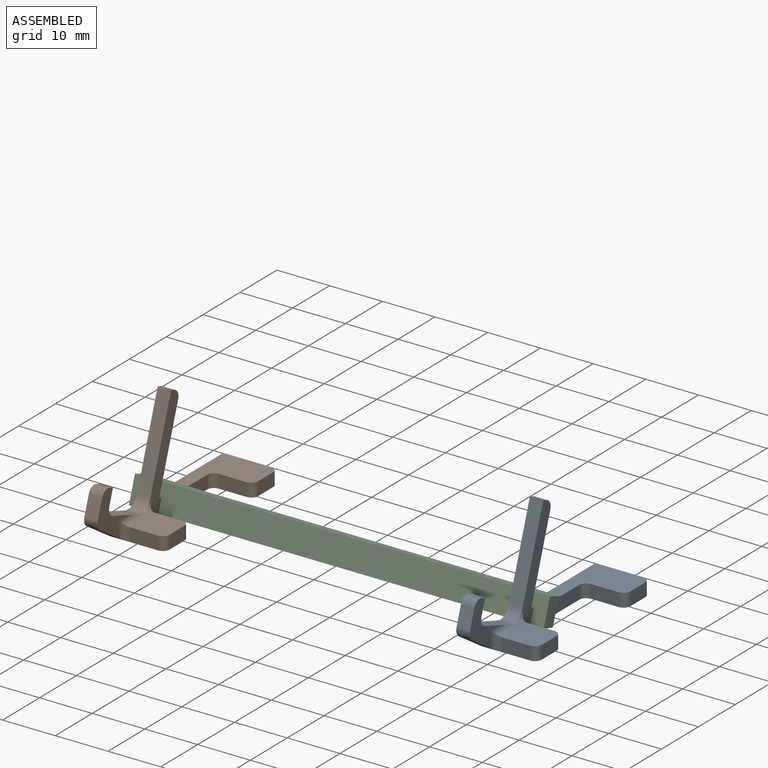
[diagram: assembled view]
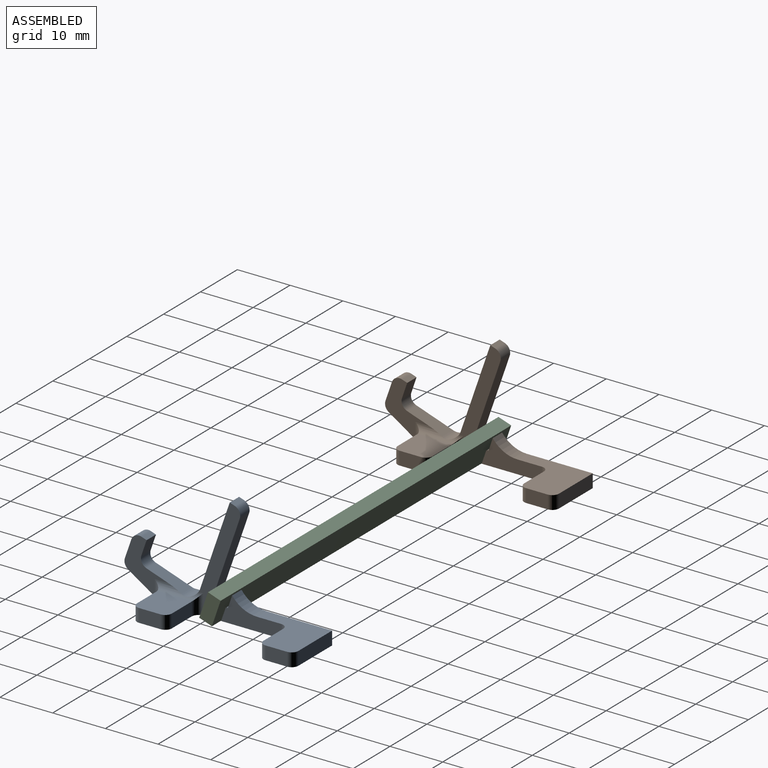
[diagram: assembled view, second angle]
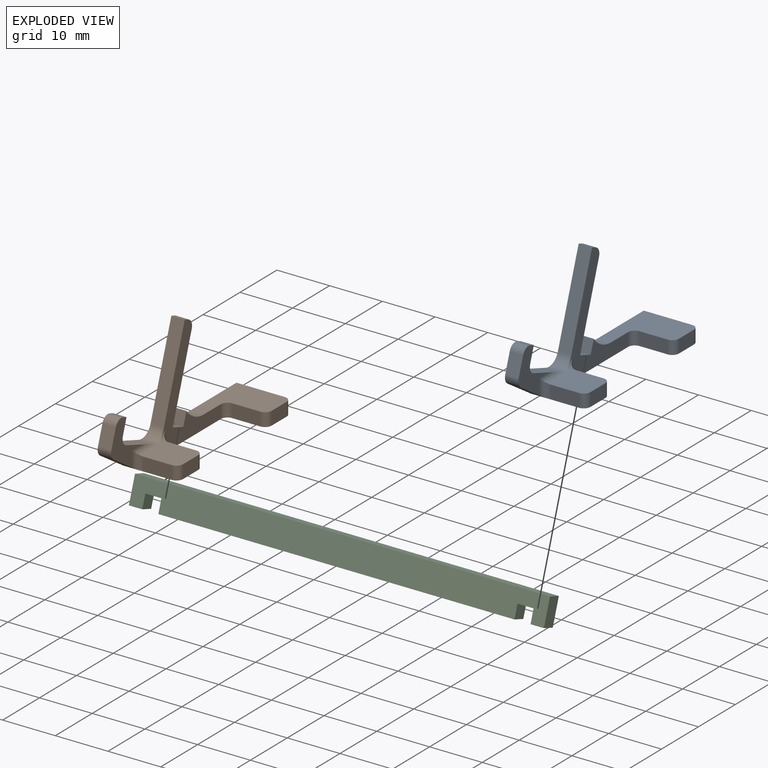
[diagram: exploded view]
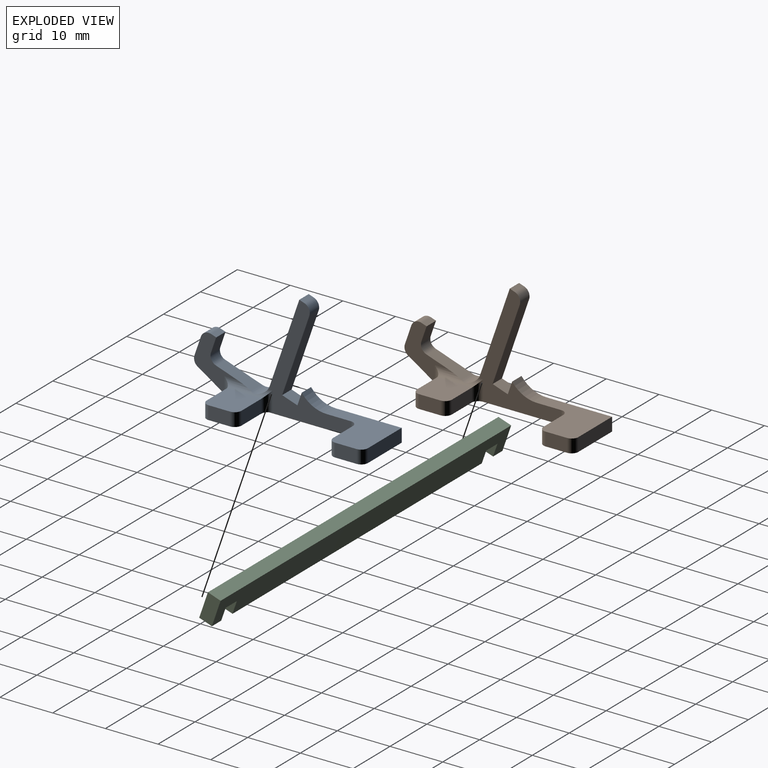
[diagram: exploded view, second angle]
ASSEMBLY  parts=3 mates=2
PART A: 46 faces, bbox 10.4x37.6x20.8 mm
  f0: plane 20.76x15.71mm, normal (1,0,0), area 89.8mm2, adj f1,f9,f10,f11,f12,f13,f14,f15
  f1: plane 30.6x10.41mm, normal (0,0,-1), area 148.8mm2, adj f0,f7,f8,f21,f22,f23,f25,f26
  f2: plane 9.66x8.35mm, normal (1,0,0), area 29.7mm2, adj f3,f4,f5,f6,f7,f18,f19,f20
  f3: plane 2.54x0.96mm, normal (0,0.33,0.95), area 2.6mm2, adj f2,f4,f20,f21
  f4: cylinder r=1.52mm len=2.54mm, axis (-1,0,0), area 6.1mm2, adj f2,f3,f5,f21
  f5: plane 3.56x2.54mm, normal (0,-0.95,0.33), area 9.6mm2, adj f2,f4,f6,f21
  f6: cylinder r=1.52mm len=2.54mm, axis (-1,0,0), area 5.1mm2, adj f2,f5,f7,f21
  f7: plane 6.33x4.13mm, normal (0,-0.55,-0.84), area 19.6mm2, adj f1,f2,f6,f21,f43
  f8: plane 9.14x2.54mm, normal (0,1,0), area 23.2mm2, adj f1,f9,f21,f38
  f9: plane 12.46x10.41mm, normal (0,0,1), area 83.3mm2, adj f0,f8,f10,f21,f26,f27,f38,f39
  f10: cylinder r=5.84mm len=4.72mm, axis (-1,0,0), area 14mm2, adj f0,f9,f11,f21
  f11: plane 2.54x2.4mm, normal (0,-0.95,0.33), area 6.5mm2, adj f0,f10,f12,f21
  f12: plane 2.88x2.54mm, normal (0,0.33,0.95), area 7.7mm2, adj f0,f11,f13,f21
  f13: plane 14.96x5.15mm, normal (0,0.95,-0.33), area 40.2mm2, adj f0,f12,f14,f21
  f14: cylinder r=1.52mm len=2.54mm, axis (-1,0,0), area 6.1mm2, adj f0,f13,f15,f21
  f15: plane 2.54x0.96mm, normal (0,0.33,0.95), area 2.6mm2, adj f0,f14,f16,f21
  f16: plane 16.33x5.62mm, normal (0,-0.95,0.33), area 43.9mm2, adj f0,f15,f17,f21
  f17: cylinder r=2.54mm len=3.23mm, axis (-1,0,0), area 11.3mm2, adj f0,f16,f18,f21,f44
  f18: plane 6.96x2.97mm, normal (0,0.33,0.95), area 19.1mm2, adj f2,f17,f19,f21,f44
  f19: cylinder r=1.52mm len=2.54mm, axis (-1,0,0), area 6.1mm2, adj f2,f18,f20,f21
  f20: plane 2.88x2.54mm, normal (0,0.95,-0.33), area 7.7mm2, adj f2,f3,f19,f21
  f21: plane 37.62x20.76mm, normal (-1,0,0), area 170.1mm2, adj f1,f3,f4,f5,f6,f7,f8,f9
  f22: plane 5.33x2.54mm, normal (0,-1,0), area 13.5mm2, adj f1,f24,f41,f43
  f23: plane 5.33x2.54mm, normal (0,1,0), area 13.5mm2, adj f1,f24,f40,f45
  f24: plane 6.6x6.6mm, normal (0,0,1), area 42.9mm2, adj f22,f23,f25,f40,f41,f44
  f25: plane 4.06x2.54mm, normal (1,0,0), area 10.3mm2, adj f1,f24,f40,f41
  f26: plane 5.33x2.54mm, normal (0,-1,0), area 13.5mm2, adj f1,f9,f39,f42
  f27: plane 4.06x2.54mm, normal (1,0,0), area 10.3mm2, adj f1,f9,f38,f39
  f28: plane 2.54x1.78mm, normal (-1,0,0), area 4.5mm2, adj f1,f29,f31,f32
  f29: plane 6.35x1.78mm, normal (0,1,0), area 11.3mm2, adj f1,f28,f30,f32
  f30: plane 2.54x1.78mm, normal (1,0,0), area 4.5mm2, adj f1,f29,f31,f32
  f31: plane 6.35x1.78mm, normal (0,-1,0), area 11.3mm2, adj f1,f28,f30,f32
  f32: plane 6.35x2.54mm, normal (0,0,-1), area 16.1mm2, adj f28,f29,f30,f31
  f33: plane 2.54x1.78mm, normal (-1,0,0), area 4.5mm2, adj f1,f34,f36,f37
  f34: plane 6.35x1.78mm, normal (0,1,0), area 11.3mm2, adj f1,f33,f35,f37
  f35: plane 2.54x1.78mm, normal (1,0,0), area 4.5mm2, adj f1,f34,f36,f37
  f36: plane 6.35x1.78mm, normal (0,-1,0), area 11.3mm2, adj f1,f33,f35,f37
  f37: plane 6.35x2.54mm, normal (0,0,-1), area 16.1mm2, adj f33,f34,f35,f36
  f38: cylinder r=1.27mm len=2.54mm, axis (0,0,-1), area 5.1mm2, adj f1,f8,f9,f27
  f39: cylinder r=1.27mm len=2.54mm, axis (0,0,1), area 5.1mm2, adj f1,f9,f26,f27
  f40: cylinder r=1.27mm len=2.54mm, axis (0,0,-1), area 5.1mm2, adj f1,f23,f24,f25
  f41: cylinder r=1.27mm len=2.54mm, axis (0,0,1), area 5.1mm2, adj f1,f22,f24,f25
  f42: cylinder r=1.27mm len=2.54mm, axis (0,0,-1), area 5.1mm2, adj f0,f1,f9,f26
  f43: cylinder r=1.27mm len=3.81mm, axis (0,0,-1), area 5.4mm2, adj f2,f7,f22,f44
  f44: cylinder r=1.27mm len=9.14mm, axis (0,-1,0), area 10.8mm2, adj f0,f2,f17,f18,f24,f43,f45
  f45: cylinder r=1.27mm len=3.81mm, axis (0,0,1), area 6mm2, adj f0,f1,f23,f44
PART B: same geometry as A
PART C: 14 faces, bbox 2.5x78.7x5.1 mm
  f0: plane 2.54x2.54mm, normal (0,1,0), area 6.5mm2, adj f1,f11,f12,f13
  f1: plane 3.05x2.54mm, normal (0,0,-1), area 7.7mm2, adj f0,f2,f12,f13
  f2: plane 2.54x2.54mm, normal (0,-1,0), area 6.5mm2, adj f1,f3,f12,f13
  f3: plane 67.56x2.54mm, normal (0,0,-1), area 171.6mm2, adj f2,f4,f12,f13
  f4: plane 2.54x2.54mm, normal (0,1,0), area 6.5mm2, adj f3,f5,f12,f13
  f5: plane 3.05x2.54mm, normal (0,0,-1), area 7.7mm2, adj f4,f6,f12,f13
  f6: plane 2.54x2.54mm, normal (0,-1,0), area 6.5mm2, adj f5,f7,f12,f13
  f7: plane 2.54x2.54mm, normal (0,0,-1), area 6.5mm2, adj f6,f8,f12,f13
  f8: plane 5.08x2.54mm, normal (0,1,0), area 12.9mm2, adj f7,f9,f12,f13
  f9: plane 78.74x2.54mm, normal (0,0,1), area 200mm2, adj f8,f10,f12,f13
  f10: plane 5.08x2.54mm, normal (0,-1,0), area 12.9mm2, adj f9,f11,f12,f13
  f11: plane 2.54x2.54mm, normal (0,0,-1), area 6.5mm2, adj f0,f10,f12,f13
  f12: plane 78.74x5.08mm, normal (1,0,0), area 384.5mm2, adj f0,f1,f2,f3,f4,f5,f6,f7
  f13: plane 78.74x5.08mm, normal (-1,0,0), area 384.5mm2, adj f0,f1,f2,f3,f4,f5,f6,f7
PLACE A t=(-12.77,-12.5,8.89)mm
PLACE B t=(-83.38,-12.5,8.89)mm
PLACE C rot(axis=(-0.16,0.16,0.97),91.6deg) t=(-54.83,-19.43,-24.65)mm
MATE fastened C.f5 <-> B.f12  axis (0,-0.33,-0.95) through (-82.11,-6.37,9.39)mm
MATE fastened C.f1 <-> A.f12  axis (0,-0.33,-0.95) through (-11.5,-6.37,9.39)mm
